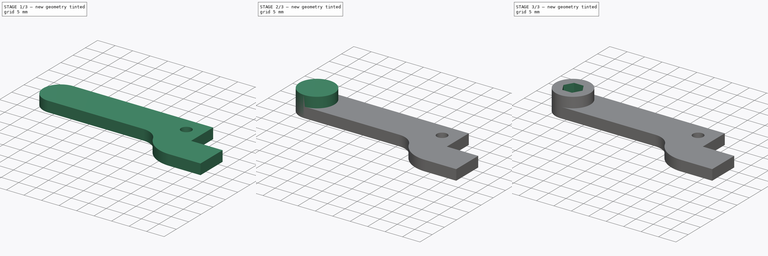
[diagram: build sequence overview — one tinted view per stage of 3, left to right]
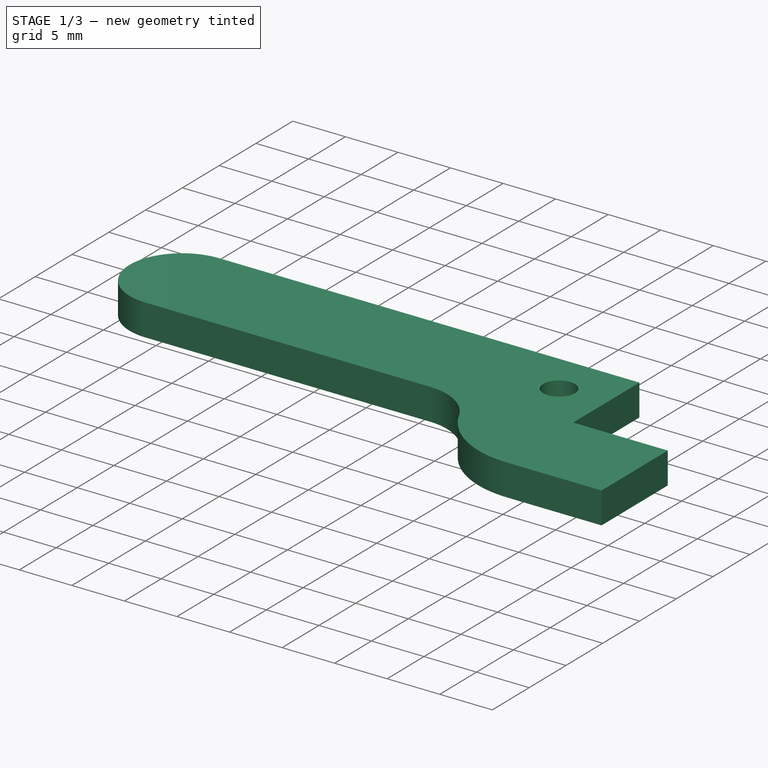
[diagram: stage 1 of 3 — iso view after this stage's code; geometry added in this stage tinted green]
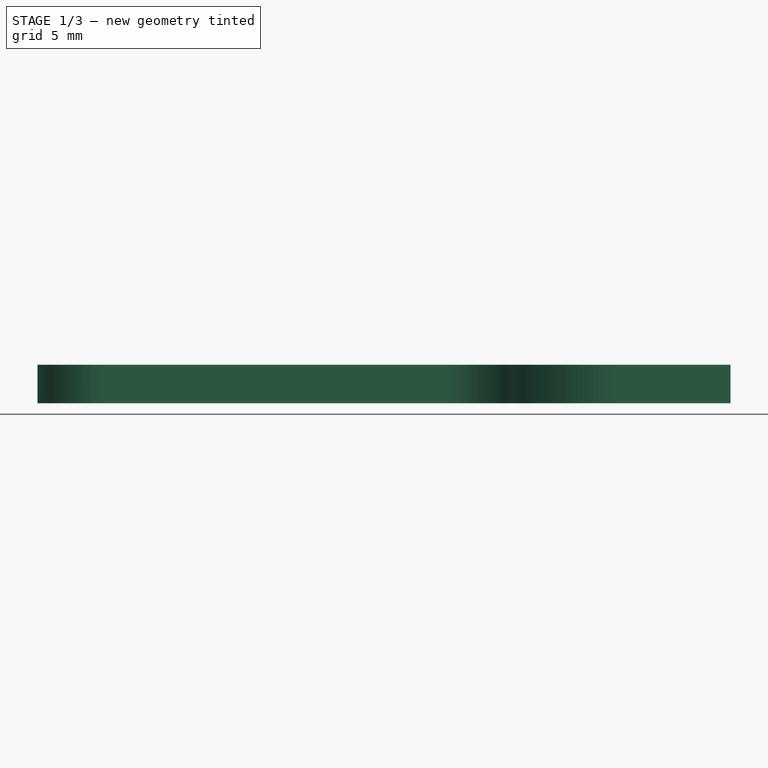
[diagram: stage 1 of 3 — front view after this stage's code; geometry added in this stage tinted green]
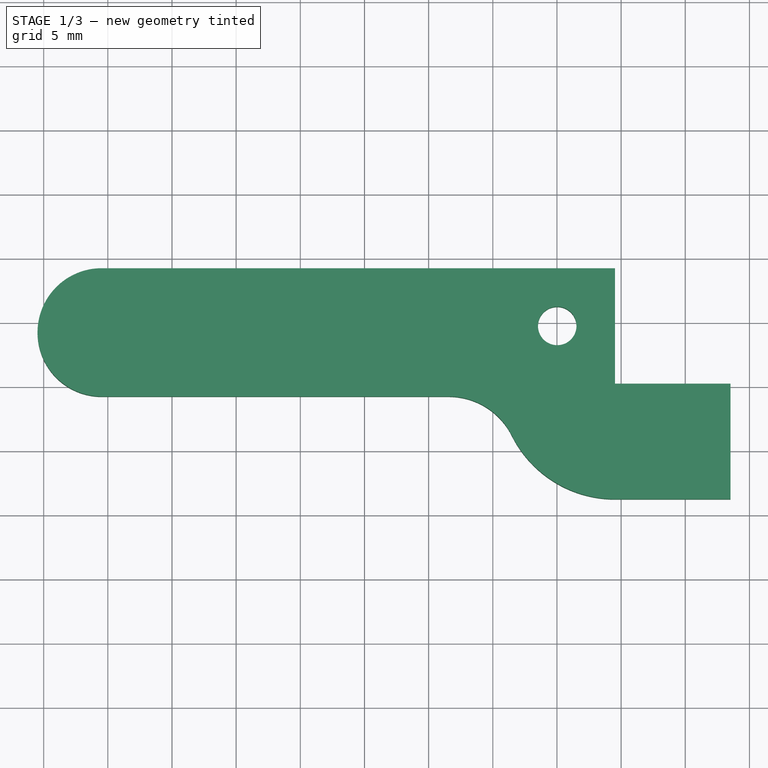
[diagram: stage 1 of 3 — top view after this stage's code; geometry added in this stage tinted green]
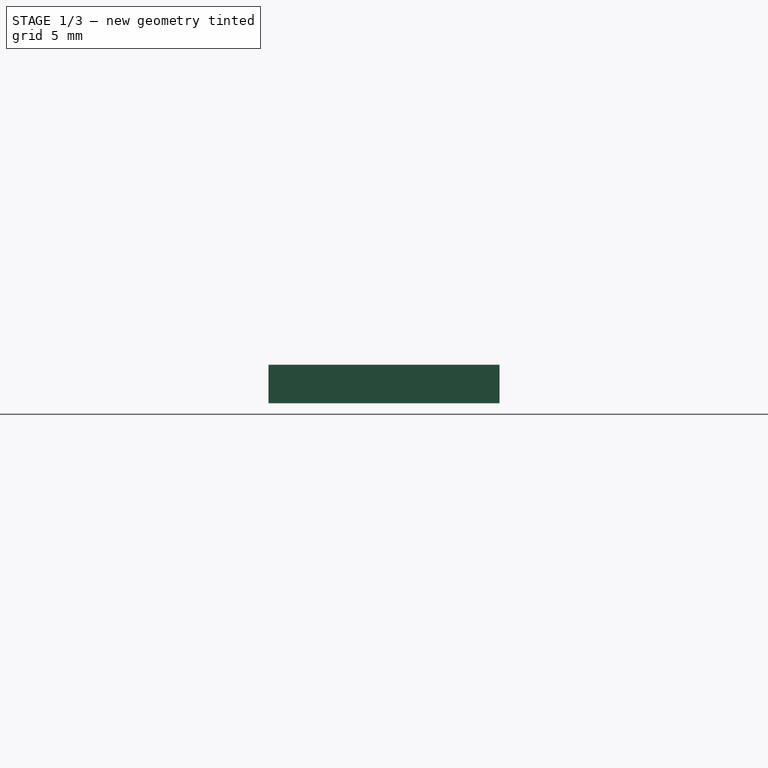
[diagram: stage 1 of 3 — right view after this stage's code; geometry added in this stage tinted green]
FCSTD DOCUMENT  (FreeCAD 0.14R3702 (Git))
Label: apoyo-grua
License: CC-BY 3.0
LicenseURL: http://creativecommons.org/licenses/by/3.0/
objects: Sketcher::SketchObject×5, PartDesign::Pocket×3, PartDesign::Pad×2
note: 15 computed .brp shape members not serialized (recipe doc carries the construction recipe); baked Part::Feature solids carry a one-line shape summary decoded from their .brp

FEATURE [Sketcher::SketchObject] Sketch  label="sk-main"
  sketch-geometry (9):
    g0: LineSegment StartX=48.5213 StartY=5.23714 StartZ=0 EndX=39.5213 EndY=5.23714 EndZ=0
    g1: LineSegment StartX=39.5213 StartY=5.23714 StartZ=0 EndX=39.5213 EndY=14.2371 EndZ=0
    g2: LineSegment StartX=39.5213 StartY=14.2371 StartZ=0 EndX=-0.478712 EndY=14.2371 EndZ=0
    g3: LineSegment StartX=-0.478728 StartY=4.23714 StartZ=0 EndX=26.5644 EndY=4.23714 EndZ=0
    g4: LineSegment StartX=39.5213 StartY=-3.76286 StartZ=0 EndX=48.5213 EndY=-3.76286 EndZ=0
    g5: LineSegment StartX=48.5213 StartY=-3.76286 StartZ=0 EndX=48.5213 EndY=5.23714 EndZ=0
    g6: ArcOfCircle CenterX=26.5644 CenterY=-1.25547 CenterZ=0 NormalX=0 NormalY=0 NormalZ=1 Radius=5.49261 StartAngle=0.46452 EndAngle=1.5708
    g7: ArcOfCircle CenterX=39.5213 CenterY=5.23714 CenterZ=0 NormalX=0 NormalY=0 NormalZ=1 Radius=9 StartAngle=3.60611 EndAngle=4.71239
    g8: ArcOfCircle CenterX=-0.478728 CenterY=9.23714 CenterZ=0 NormalX=0 NormalY=0 NormalZ=1 Radius=5 StartAngle=1.57079 EndAngle=4.71239
  constraints (23):
    c: Coincident(g0,g1)
    c: Coincident(g1,g2)
    c: Coincident(g4,g5)
    c: Coincident(g5,g0)
    c: Vertical(g1)
    c: DistanceY(g1) = 9
    c: Horizontal(g0)
    c: DistanceX(g0) = -9
    c: Vertical(g5)
    c: Tangent(g3,g6)
    c: Tangent(g4,g7)
    c: Tangent(g3,g8)
    c: Coincident(g2,g8)
    c: Tangent(g8,g2)
    c: Coincident(g6,g7)
    c: Horizontal(g4)
    c: Horizontal(g3)
    c: Distance(g3,g2) = 10
    c: Coincident(g0,g7)
    c: Tangent(g6,g7)
    c: Horizontal(g2)
    c: DistanceY(g5) = 9
    c: DistanceX(g2) = -40
FEATURE [PartDesign::Pad] Pad  label="pad-principal"
  Length = 3
  Length2 = 5
  Sketch = -> Sketch
  Type = 0
FEATURE [Sketcher::SketchObject] Sketch001  label="taladro"
  ExternalGeometry = -> [Pad]
  Placement = pos=(0,0,3) rot=(0,0,1;0rad)
  Support = -> Pad [Face11]
  sketch-geometry (1):
    g0: Circle CenterX=35.0213 CenterY=9.73714 CenterZ=0 NormalX=0 NormalY=0 NormalZ=1 Radius=1.5
  constraints (3):
    c: Radius(g0) = 1.5
    c: Distance(g0,g-3) = 4.5
    c: Distance(g0,g-4) = 4.5
FEATURE [PartDesign::Pocket] Pocket  label="pocket-taladro"
  Length = 5
  Sketch = -> Sketch001
  Type = 1
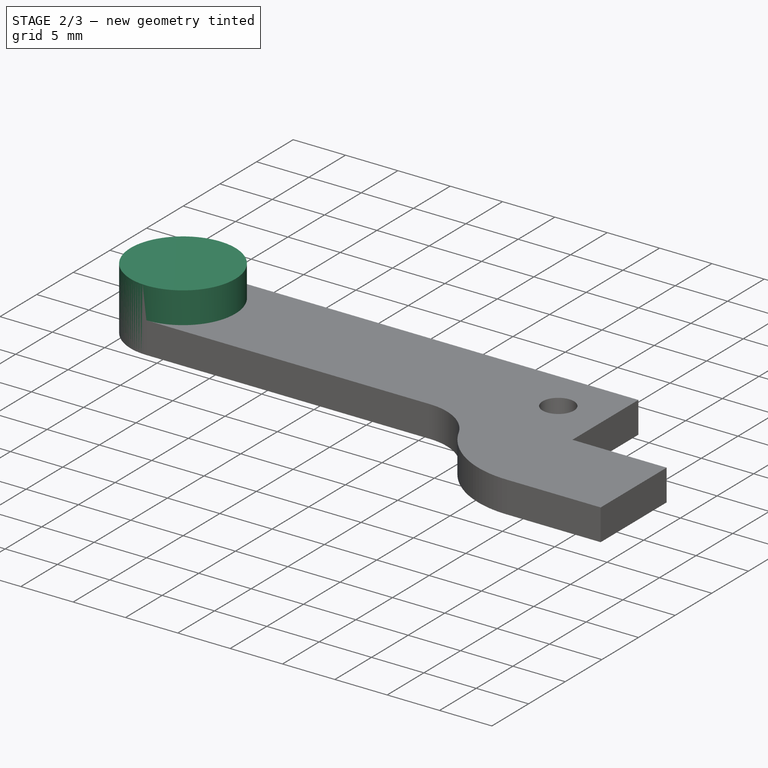
[diagram: stage 2 of 3 — iso view after this stage's code; geometry added in this stage tinted green]
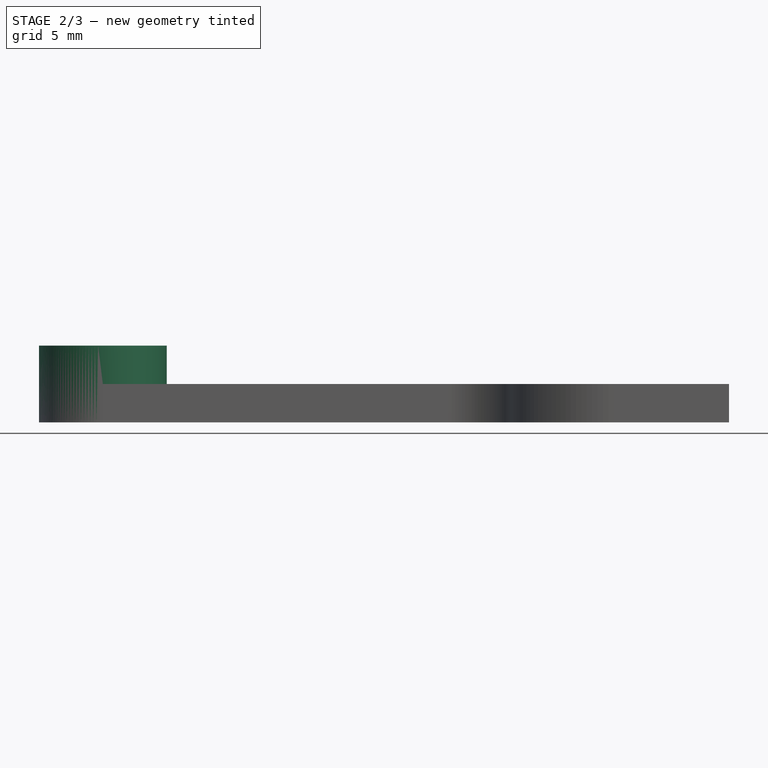
[diagram: stage 2 of 3 — front view after this stage's code; geometry added in this stage tinted green]
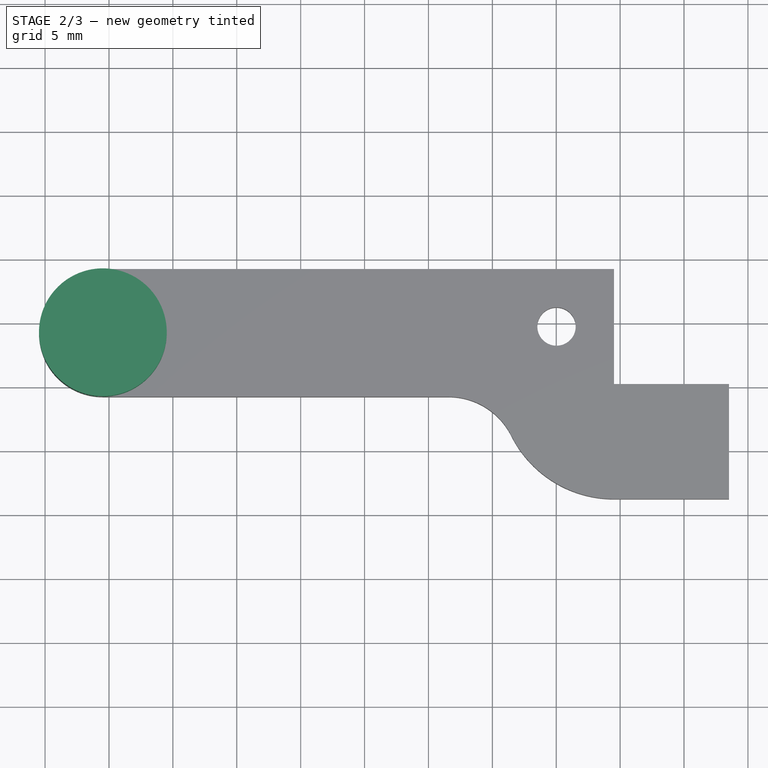
[diagram: stage 2 of 3 — top view after this stage's code; geometry added in this stage tinted green]
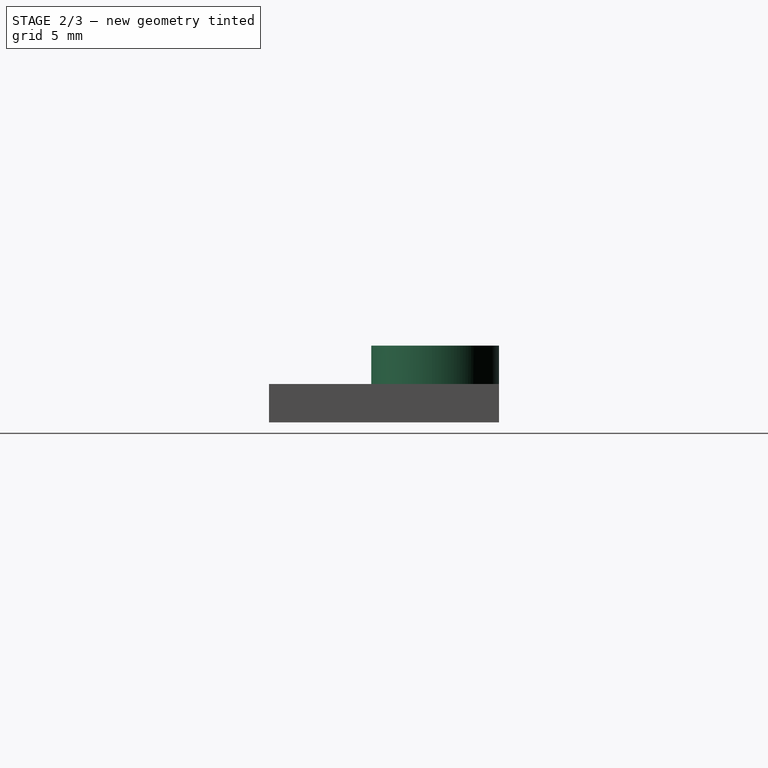
[diagram: stage 2 of 3 — right view after this stage's code; geometry added in this stage tinted green]
FEATURE [Sketcher::SketchObject] Sketch002  label="sk-cilindro"
  ExternalGeometry = -> [Pocket]
  Placement = pos=(0,0,3) rot=(0,0,1;0rad)
  Support = -> Pocket [Face5]
  sketch-geometry (1):
    g0: Circle CenterX=-0.478728 CenterY=9.23714 CenterZ=0 NormalX=0 NormalY=0 NormalZ=1 Radius=5
  constraints (2):
    c: Equal(g0,g-3)
    c: Coincident(g0,g-3)
FEATURE [PartDesign::Pad] Pad001  label="pad-cilindro"
  Length = 3
  Length2 = 5
  Sketch = -> Sketch002
  Type = 0
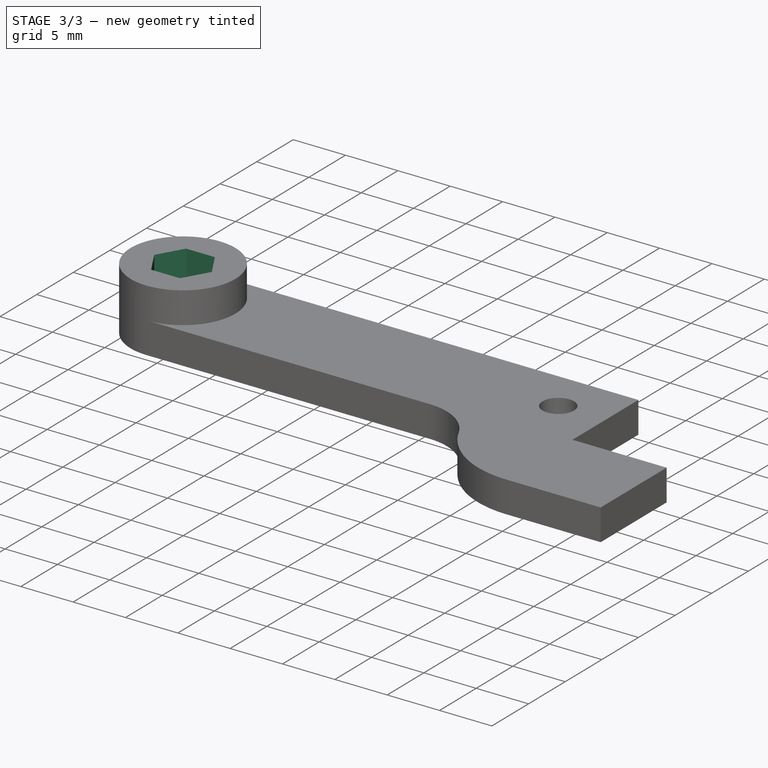
[diagram: stage 3 of 3 — iso view after this stage's code; geometry added in this stage tinted green]
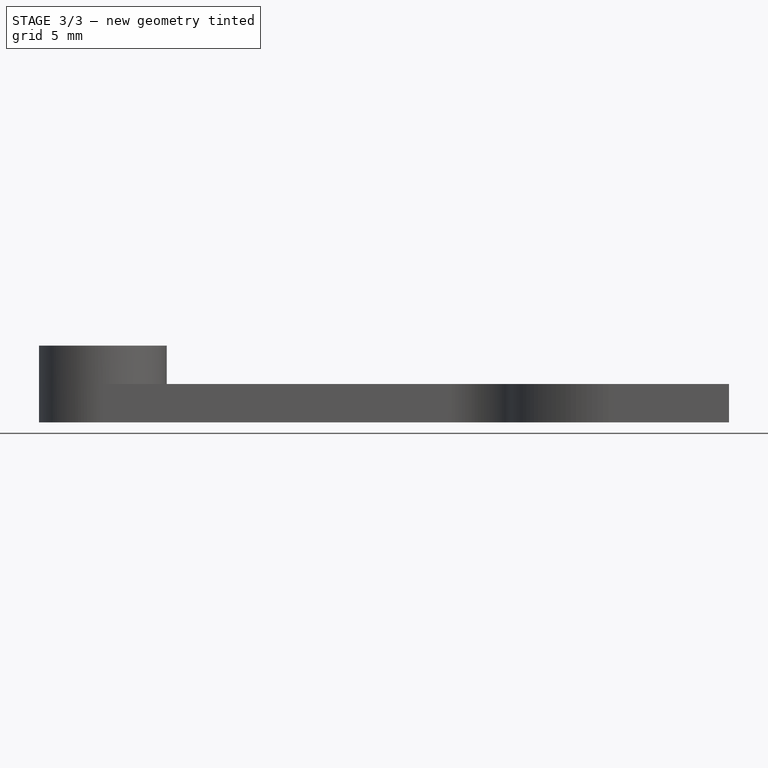
[diagram: stage 3 of 3 — front view after this stage's code; geometry added in this stage tinted green]
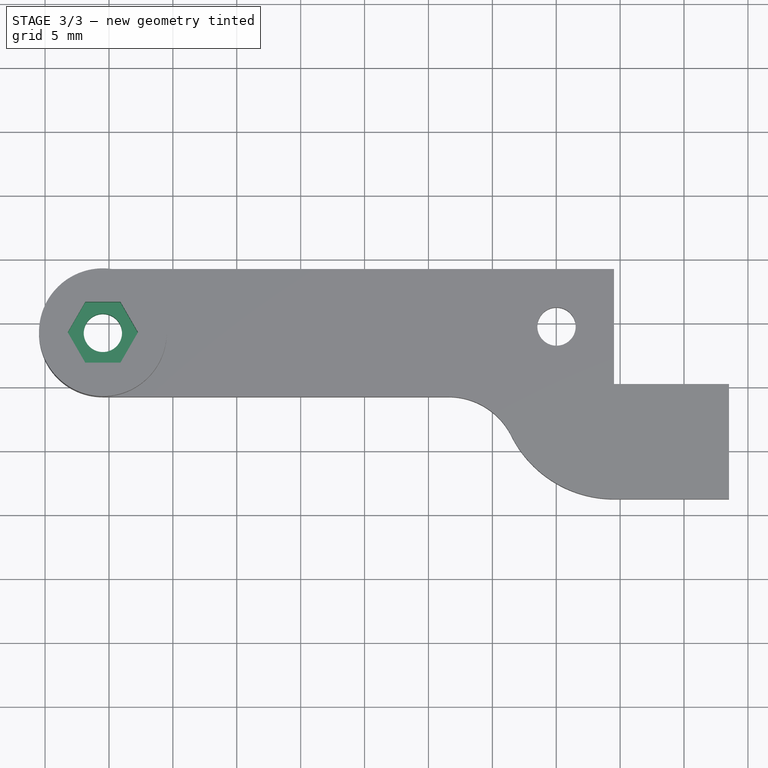
[diagram: stage 3 of 3 — top view after this stage's code; geometry added in this stage tinted green]
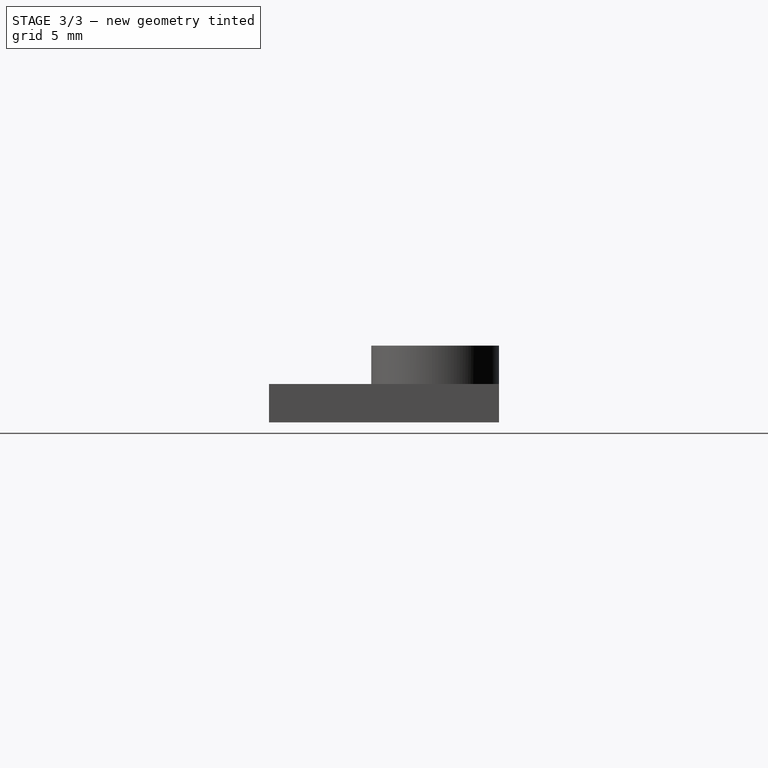
[diagram: stage 3 of 3 — right view after this stage's code; geometry added in this stage tinted green]
FEATURE [Sketcher::SketchObject] Sketch003  label="sk-hex"
  ExternalGeometry = -> [Pad001]
  Placement = pos=(0,0,6) rot=(0,0,1;0rad)
  Support = -> Pad001 [Face13]
  sketch-geometry (7):
    g0: LineSegment StartX=-1.85373 StartY=11.6187 StartZ=0 EndX=0.896272 EndY=11.6187 EndZ=0
    g1: LineSegment StartX=0.896272 StartY=11.6187 StartZ=0 EndX=2.27127 EndY=9.23714 EndZ=0
    g2: LineSegment StartX=2.27127 StartY=9.23714 StartZ=0 EndX=0.896272 EndY=6.85557 EndZ=0
    g3: LineSegment StartX=0.896272 StartY=6.85557 StartZ=0 EndX=-1.85373 EndY=6.85557 EndZ=0
    g4: LineSegment StartX=-1.85373 StartY=6.85557 StartZ=0 EndX=-3.22873 EndY=9.23714 EndZ=0
    g5: LineSegment StartX=-3.22873 StartY=9.23714 StartZ=0 EndX=-1.85373 EndY=11.6187 EndZ=0
    g6: LineSegment [constr] StartX=0.896272 StartY=11.6187 StartZ=0 EndX=-0.478728 EndY=9.23714 EndZ=0
  constraints (20):
    c: Coincident(g0,g1)
    c: Coincident(g1,g2)
    c: Coincident(g2,g3)
    c: Coincident(g3,g4)
    c: Coincident(g4,g5)
    c: Coincident(g0,g5)
    c: Horizontal(g3)
    c: Horizontal(g0)
    c: Parallel(g1,g4)
    c: Parallel(g5,g2)
    c: Coincident(g6,g-3)
    c: Equal(g6,g2)
    c: Coincident(g0,g6)
    c: Equal(g0,g1)
    c: Equal(g5,g0)
    c: Equal(g5,g4)
    c: Angle(g0,g1) = 2.0944
    c: Angle(g1,g2) = 2.0944
    c: Angle(g6,g1) = 1.0472
    c: DistanceX(g4,g1) = 5.5
FEATURE [PartDesign::Pocket] Pocket001  label="pad-hex"
  Length = 3
  Sketch = -> Sketch003
  Type = 0
FEATURE [Sketcher::SketchObject] Sketch004  label="sk-taladro-tuerca"
  ExternalGeometry = -> [Pocket001]
  Placement = pos=(0,0,3) rot=(0,0,1;0rad)
  Support = -> Pocket001 [Face20]
  sketch-geometry (3):
    g0: Circle CenterX=-0.478728 CenterY=9.23714 CenterZ=0 NormalX=0 NormalY=0 NormalZ=1 Radius=1.5
    g1: LineSegment [constr] StartX=-0.478728 StartY=9.23714 StartZ=0 EndX=-1.85373 EndY=11.6187 EndZ=0
    g2: LineSegment [constr] StartX=-0.478728 StartY=9.23714 StartZ=0 EndX=0.896272 EndY=11.6187 EndZ=0
  constraints (7):
    c: Radius(g0) = 1.5
    c: Equal(g-3,g1)
    c: Equal(g1,g2)
    c: Coincident(g0,g1)
    c: Coincident(g0,g2)
    c: Coincident(g1,g-4)
    c: Coincident(g2,g-4)
FEATURE [PartDesign::Pocket] Pocket002  label="apoyo-grua"
  Length = 5
  Sketch = -> Sketch004
  Type = 1
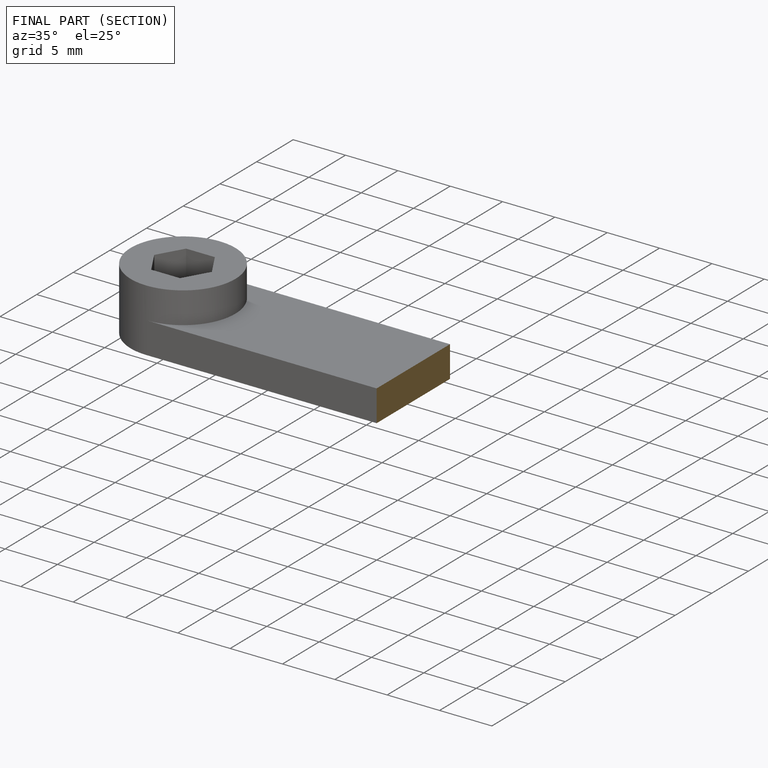
[diagram: finished part — half-section view (interior)]
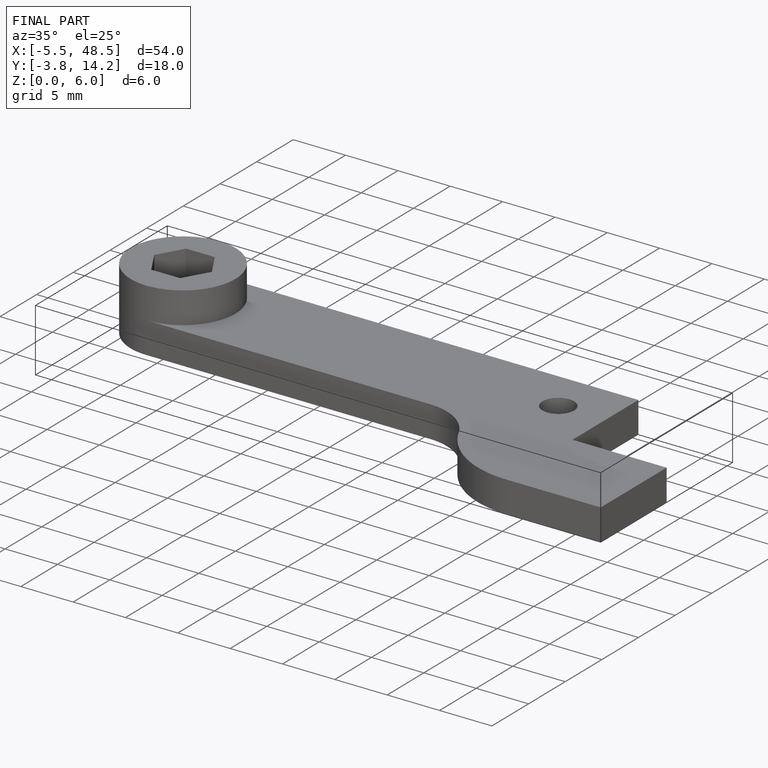
[diagram: finished part — iso view with bounding-box wireframe]
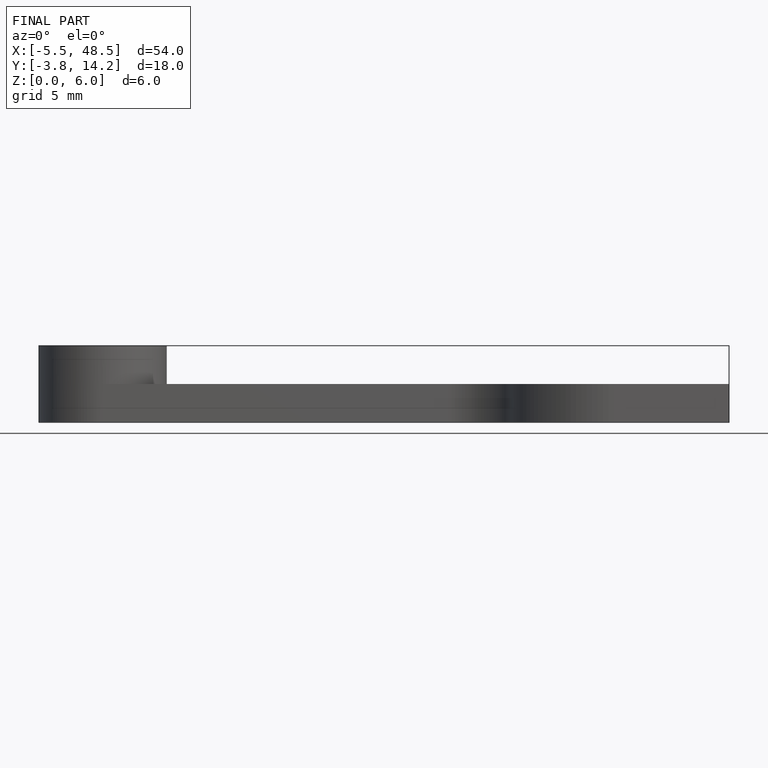
[diagram: finished part — front view with bounding-box wireframe]
